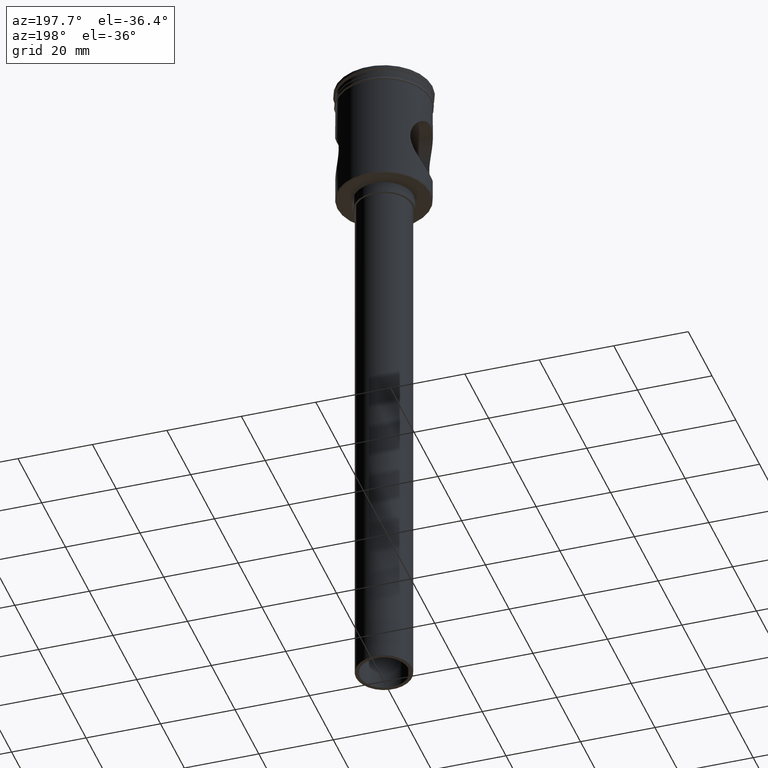
[diagram: clean part render]
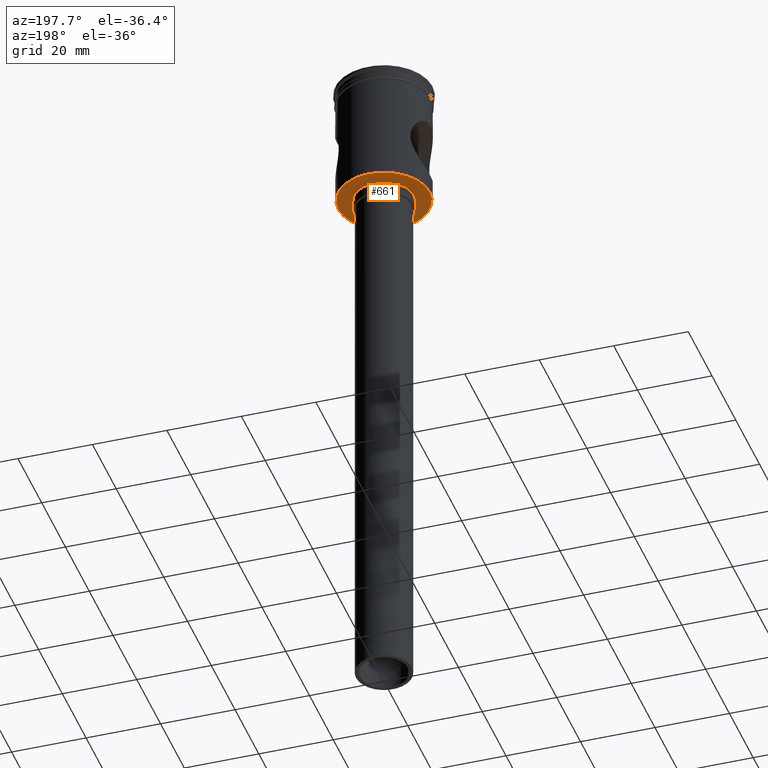
[diagram: same view with one face highlighted and labeled with its STEP entity id]
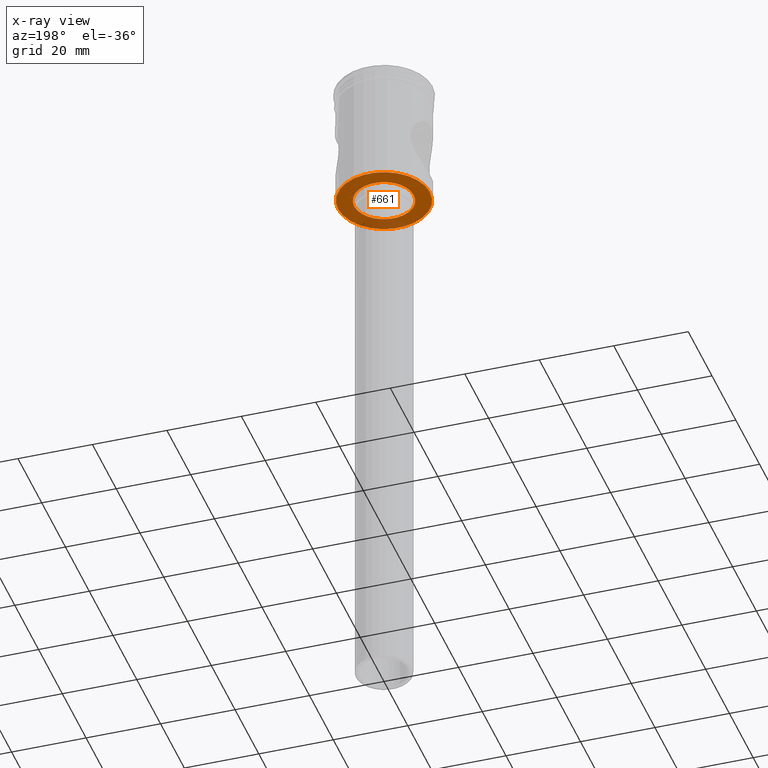
[diagram: x-ray of the same camera — body ghosted, the highlighted face saturated]
A machine part, auxiliary view. The second image highlights one B-rep face of the part: STEP entity #661.
The next image is the same camera in x-ray: the body ghosted, the highlighted face saturated — about 15% of this face is hidden behind the body in this view.
In plain terms, the highlighted planar face has unit normal (0, 0, -1).
Its self-contained STEP definition (entity closure, byte-faithful):
#6 = ORIENTED_EDGE ( 'NONE', *, *, #650, .F. ) ;
#66 = CARTESIAN_POINT ( 'NONE',  ( 0.000000000000000000, 0.000000000000000000, -33.50000000000000000 ) ) ;
#155 = EDGE_LOOP ( 'NONE', ( #1162, #6 ) ) ;
#174 = AXIS2_PLACEMENT_3D ( 'NONE', #213, #692, #1546 ) ;
#199 = AXIS2_PLACEMENT_3D ( 'NONE', #66, #1015, #435 ) ;
#213 = CARTESIAN_POINT ( 'NONE',  ( 0.000000000000000000, 0.000000000000000000, -33.50000000000000000 ) ) ;
#218 = ORIENTED_EDGE ( 'NONE', *, *, #636, .T. ) ;
#249 = DIRECTION ( 'NONE',  ( -1.000000000000000000, 0.000000000000000000, 0.000000000000000000 ) ) ;
#314 = VERTEX_POINT ( 'NONE', #926 ) ;
#344 = FACE_BOUND ( 'NONE', #155, .T. ) ;
#354 = DIRECTION ( 'NONE',  ( -1.000000000000000000, 0.000000000000000000, -0.000000000000000000 ) ) ;
#391 = VERTEX_POINT ( 'NONE', #489 ) ;
#392 = EDGE_CURVE ( 'NONE', #314, #1515, #1084, .T. ) ;
#400 = CIRCLE ( 'NONE', #1442, 12.29999999999999361 ) ;
#435 = DIRECTION ( 'NONE',  ( -1.000000000000000000, 0.000000000000000000, 0.000000000000000000 ) ) ;
#479 = EDGE_CURVE ( 'NONE', #391, #829, #589, .T. ) ;
#489 = CARTESIAN_POINT ( 'NONE',  ( 12.29999999999999361, 0.000000000000000000, -33.50000000000000000 ) ) ;
#499 = DIRECTION ( 'NONE',  ( 0.000000000000000000, 0.000000000000000000, -1.000000000000000000 ) ) ;
#522 = ORIENTED_EDGE ( 'NONE', *, *, #479, .T. ) ;
#578 = DIRECTION ( 'NONE',  ( -1.000000000000000000, 0.000000000000000000, 0.000000000000000000 ) ) ;
#589 = CIRCLE ( 'NONE', #199, 12.29999999999999361 ) ;
#636 = EDGE_CURVE ( 'NONE', #829, #391, #400, .T. ) ;
#645 = CIRCLE ( 'NONE', #174, 8.000000000000000000 ) ;
#650 = EDGE_CURVE ( 'NONE', #1515, #314, #645, .T. ) ;
#661 = ADVANCED_FACE ( 'NONE', ( #1042, #344 ), #1168, .T. ) ;
#670 = CARTESIAN_POINT ( 'NONE',  ( -12.29999999999999361, 1.518562030942717573E-15, -33.50000000000000000 ) ) ;
#692 = DIRECTION ( 'NONE',  ( 0.000000000000000000, 0.000000000000000000, -1.000000000000000000 ) ) ;
#817 = AXIS2_PLACEMENT_3D ( 'NONE', #1462, #499, #249 ) ;
#829 = VERTEX_POINT ( 'NONE', #670 ) ;
#860 = EDGE_LOOP ( 'NONE', ( #522, #218 ) ) ;
#920 = AXIS2_PLACEMENT_3D ( 'NONE', #1418, #1176, #354 ) ;
#926 = CARTESIAN_POINT ( 'NONE',  ( 8.000000000000000000, 0.000000000000000000, -33.50000000000000000 ) ) ;
#1015 = DIRECTION ( 'NONE',  ( 0.000000000000000000, 0.000000000000000000, -1.000000000000000000 ) ) ;
#1042 = FACE_OUTER_BOUND ( 'NONE', #860, .T. ) ;
#1084 = CIRCLE ( 'NONE', #817, 8.000000000000000000 ) ;
#1162 = ORIENTED_EDGE ( 'NONE', *, *, #392, .F. ) ;
#1168 = PLANE ( 'NONE',  #920 ) ;
#1176 = DIRECTION ( 'NONE',  ( 0.000000000000000000, 0.000000000000000000, -1.000000000000000000 ) ) ;
#1257 = CARTESIAN_POINT ( 'NONE',  ( -8.000000000000000000, 9.797174393178825657E-16, -33.50000000000000000 ) ) ;
#1418 = CARTESIAN_POINT ( 'NONE',  ( 0.000000000000000000, 12.49999999999999289, -33.50000000000000000 ) ) ;
#1428 = DIRECTION ( 'NONE',  ( 0.000000000000000000, 0.000000000000000000, -1.000000000000000000 ) ) ;
#1442 = AXIS2_PLACEMENT_3D ( 'NONE', #1525, #1428, #578 ) ;
#1462 = CARTESIAN_POINT ( 'NONE',  ( 0.000000000000000000, 0.000000000000000000, -33.50000000000000000 ) ) ;
#1515 = VERTEX_POINT ( 'NONE', #1257 ) ;
#1525 = CARTESIAN_POINT ( 'NONE',  ( 0.000000000000000000, 0.000000000000000000, -33.50000000000000000 ) ) ;
#1546 = DIRECTION ( 'NONE',  ( -1.000000000000000000, 0.000000000000000000, 0.000000000000000000 ) ) ;